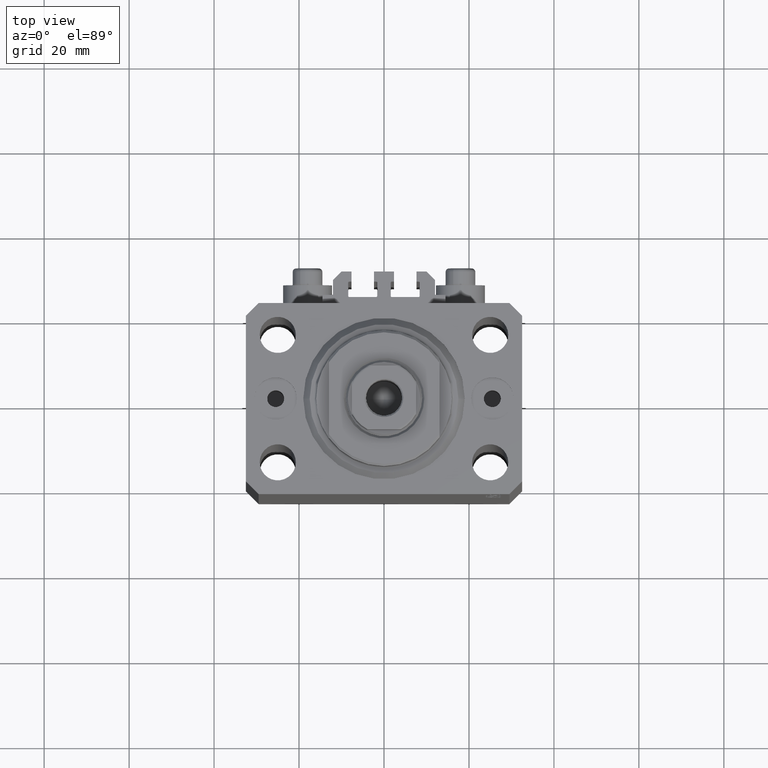
[diagram: clean part render]
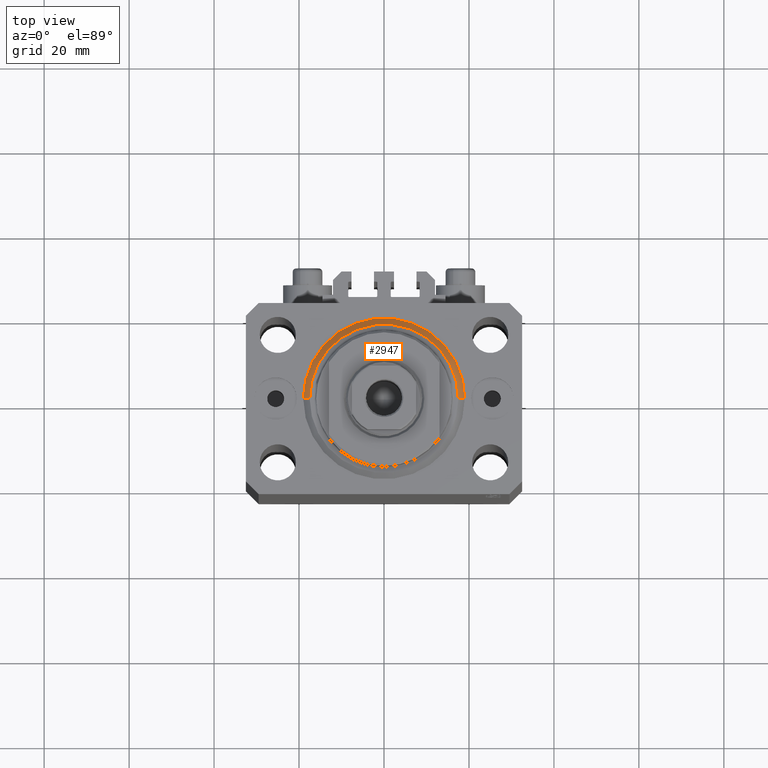
[diagram: same view with one face highlighted and labeled with its STEP entity id]
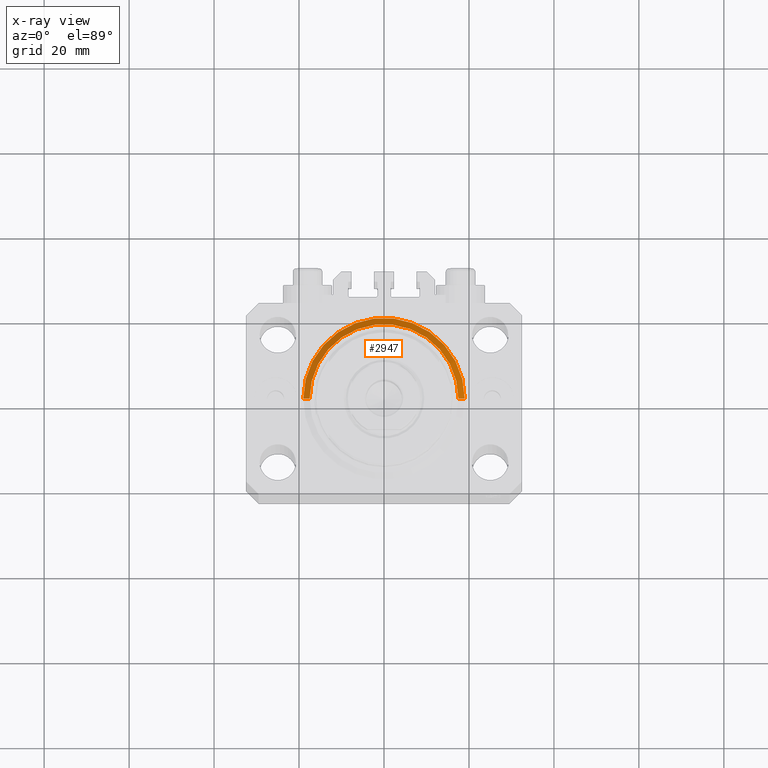
[diagram: x-ray of the same camera — body ghosted, the highlighted face saturated]
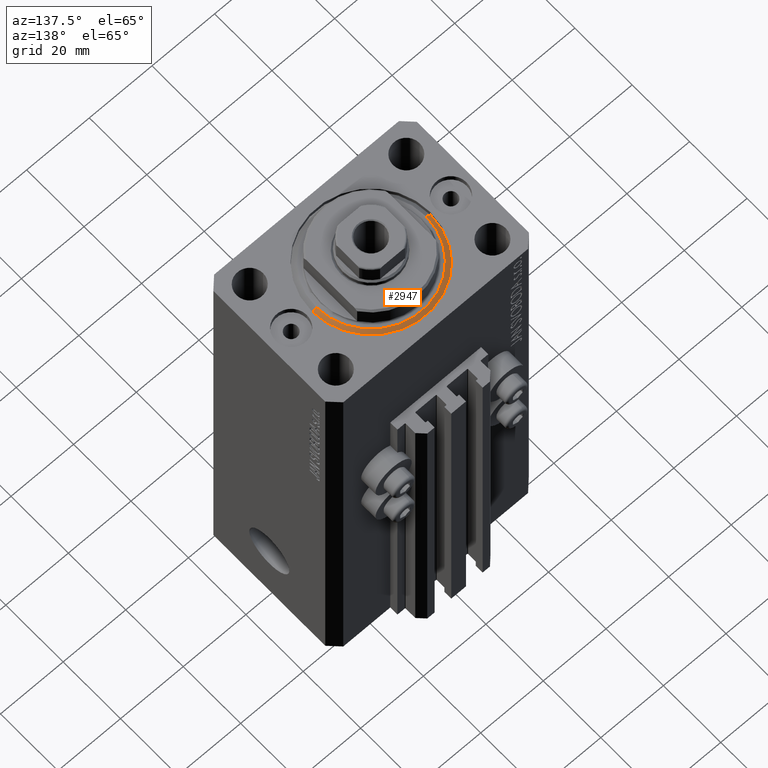
[diagram: same view with one face highlighted and labeled with its STEP entity id]
A machine part, top view. The second image highlights one B-rep face of the part: STEP entity #2947.
The next image is the same camera in x-ray: the body ghosted, the highlighted face saturated — about 0% of this face is hidden behind the body in this view.
A second angle (auxiliary view) of the same face is appended — the face is thin or edge-on in the first view.
In plain terms, the highlighted conical surface has half-angle 45 deg.
Its self-contained STEP definition (entity closure, byte-faithful):
#63 = DIRECTION ( 'NONE',  ( -0.000000000000000000, -0.000000000000000000, 1.000000000000000000 ) ) ;
#944 = CARTESIAN_POINT ( 'NONE',  ( -17.49999999999999289, 2.234980408443919215E-15, 0.000000000000000000 ) ) ;
#1310 = DIRECTION ( 'NONE',  ( -0.7071067811865483499, 8.659560562354943952E-17, 0.7071067811865467956 ) ) ;
#1441 = CARTESIAN_POINT ( 'NONE',  ( 0.000000000000000000, 0.000000000000000000, 1.500000000000004885 ) ) ;
#1580 = CARTESIAN_POINT ( 'NONE',  ( 17.49999999999999289, 0.000000000000000000, 0.000000000000000000 ) ) ;
#2947 = ADVANCED_FACE ( 'NONE', ( #7235 ), #24708, .T. ) ;
#3642 = CARTESIAN_POINT ( 'NONE',  ( 0.000000000000000000, 0.000000000000000000, 1.500000000000004885 ) ) ;
#5492 = VERTEX_POINT ( 'NONE', #10255 ) ;
#6079 = AXIS2_PLACEMENT_3D ( 'NONE', #27750, #25110, #17004 ) ;
#6873 = ORIENTED_EDGE ( 'NONE', *, *, #10340, .T. ) ;
#7235 = FACE_OUTER_BOUND ( 'NONE', #24417, .T. ) ;
#7811 = ORIENTED_EDGE ( 'NONE', *, *, #46845, .F. ) ;
#8444 = VERTEX_POINT ( 'NONE', #944 ) ;
#10255 = CARTESIAN_POINT ( 'NONE',  ( -19.00000000000000000, 0.000000000000000000, 1.500000000000004885 ) ) ;
#10340 = EDGE_CURVE ( 'NONE', #8444, #5492, #33527, .T. ) ;
#13614 = AXIS2_PLACEMENT_3D ( 'NONE', #1441, #19802, #19322 ) ;
#13712 = VECTOR ( 'NONE', #15647, 1000.000000000000000 ) ;
#15488 = EDGE_CURVE ( 'NONE', #22811, #46603, #34020, .T. ) ;
#15647 = DIRECTION ( 'NONE',  ( 0.7071067811865483499, 0.000000000000000000, 0.7071067811865467956 ) ) ;
#15794 = EDGE_CURVE ( 'NONE', #8444, #22811, #35001, .T. ) ;
#17004 = DIRECTION ( 'NONE',  ( 1.000000000000000000, 0.000000000000000000, 0.000000000000000000 ) ) ;
#19322 = DIRECTION ( 'NONE',  ( 1.000000000000000000, 0.000000000000000000, 0.000000000000000000 ) ) ;
#19802 = DIRECTION ( 'NONE',  ( -0.000000000000000000, -0.000000000000000000, 1.000000000000000000 ) ) ;
#22724 = CIRCLE ( 'NONE', #13614, 19.00000000000000000 ) ;
#22811 = VERTEX_POINT ( 'NONE', #1580 ) ;
#23510 = ORIENTED_EDGE ( 'NONE', *, *, #15488, .F. ) ;
#24417 = EDGE_LOOP ( 'NONE', ( #35268, #6873, #7811, #23510 ) ) ;
#24708 = CONICAL_SURFACE ( 'NONE', #30059, 19.00000000000000000, 0.7853981633974492782 ) ;
#25110 = DIRECTION ( 'NONE',  ( -0.000000000000000000, -0.000000000000000000, -1.000000000000000000 ) ) ;
#26693 = VECTOR ( 'NONE', #1310, 1000.000000000000000 ) ;
#27750 = CARTESIAN_POINT ( 'NONE',  ( 0.000000000000000000, 0.000000000000000000, 0.000000000000000000 ) ) ;
#30059 = AXIS2_PLACEMENT_3D ( 'NONE', #3642, #63, #46624 ) ;
#33527 = LINE ( 'NONE', #37113, #26693 ) ;
#33551 = CARTESIAN_POINT ( 'NONE',  ( 19.00000000000000000, 0.000000000000000000, 1.500000000000004885 ) ) ;
#34020 = LINE ( 'NONE', #33551, #13712 ) ;
#35001 = CIRCLE ( 'NONE', #6079, 17.49999999999999289 ) ;
#35268 = ORIENTED_EDGE ( 'NONE', *, *, #15794, .F. ) ;
#37113 = CARTESIAN_POINT ( 'NONE',  ( -19.00000000000000000, 2.326828918379970970E-15, 1.500000000000004885 ) ) ;
#46587 = CARTESIAN_POINT ( 'NONE',  ( 19.00000000000000000, 2.326828918379970970E-15, 1.500000000000004885 ) ) ;
#46603 = VERTEX_POINT ( 'NONE', #46587 ) ;
#46624 = DIRECTION ( 'NONE',  ( 1.000000000000000000, 0.000000000000000000, 0.000000000000000000 ) ) ;
#46845 = EDGE_CURVE ( 'NONE', #46603, #5492, #22724, .T. ) ;